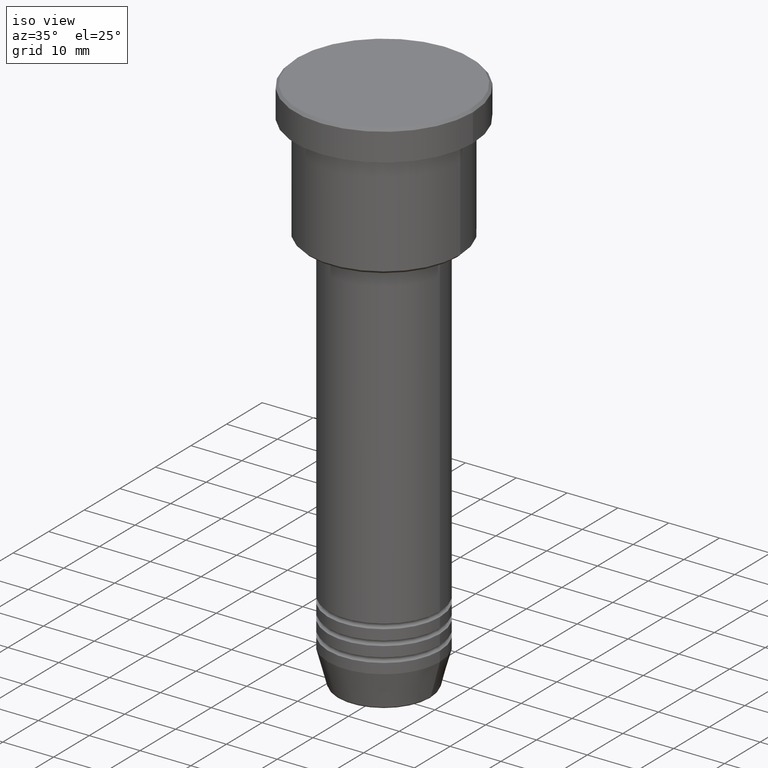
[diagram: clean part render]
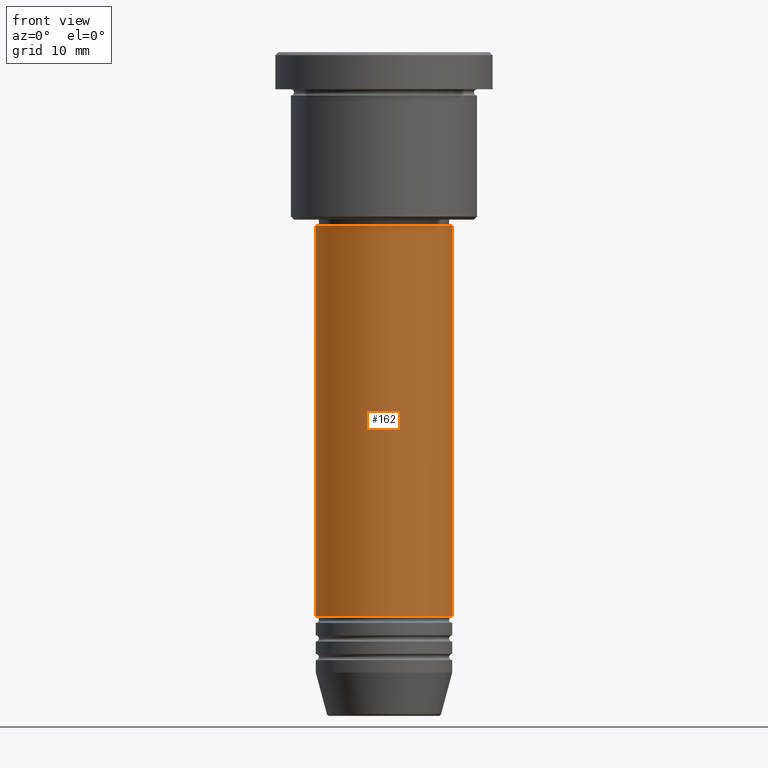
[diagram: tour spotlight — one face highlighted and labeled with its STEP entity id]
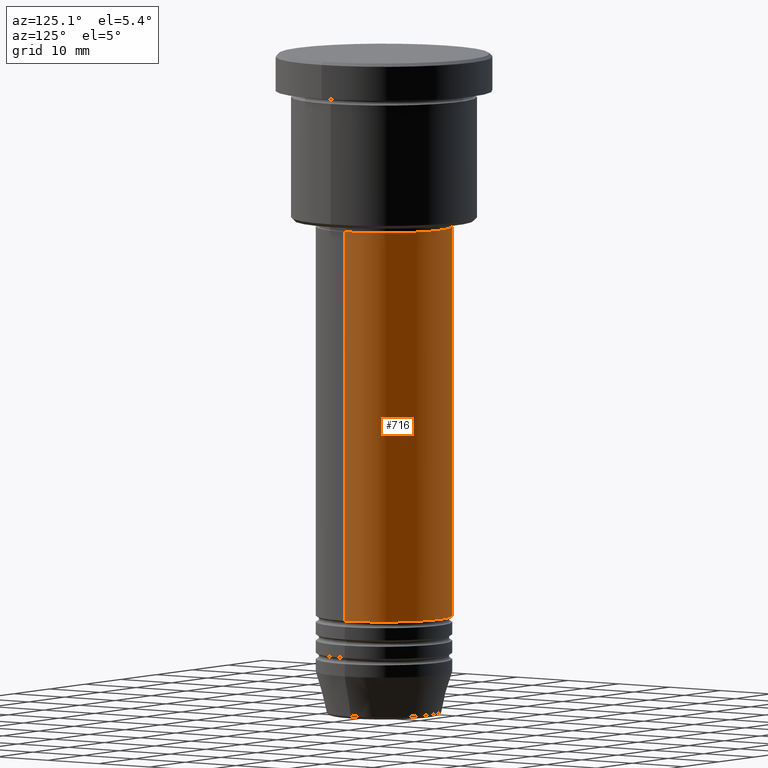
[diagram: tour spotlight — one face highlighted and labeled with its STEP entity id]
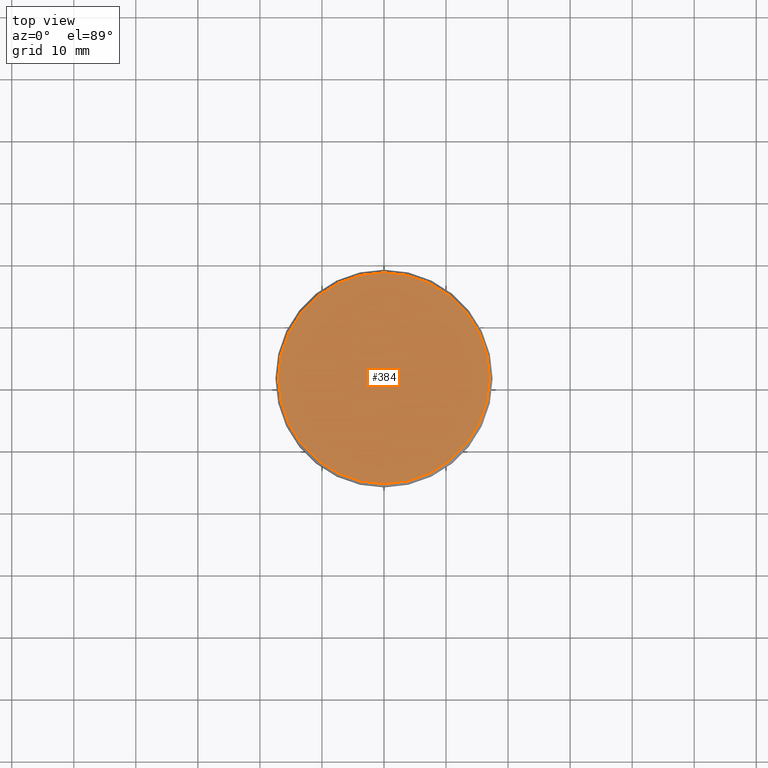
[diagram: tour spotlight — one face highlighted and labeled with its STEP entity id]
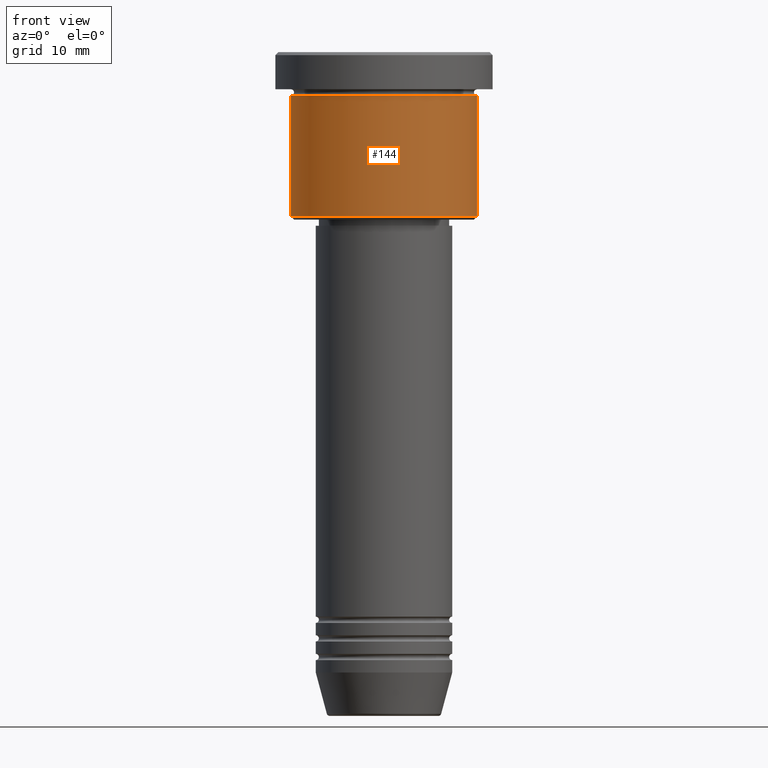
[diagram: tour spotlight — one face highlighted and labeled with its STEP entity id]
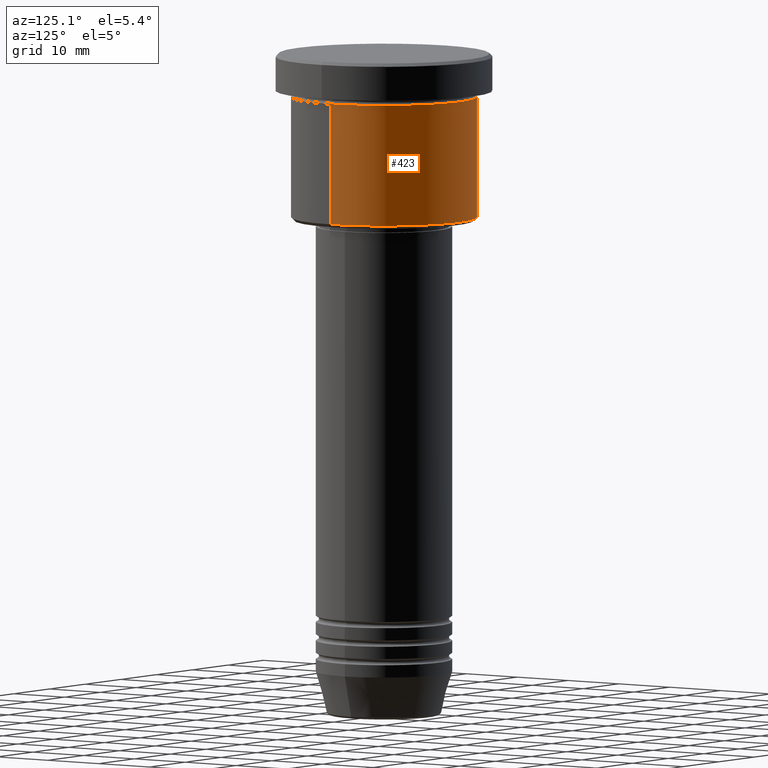
[diagram: tour spotlight — one face highlighted and labeled with its STEP entity id]
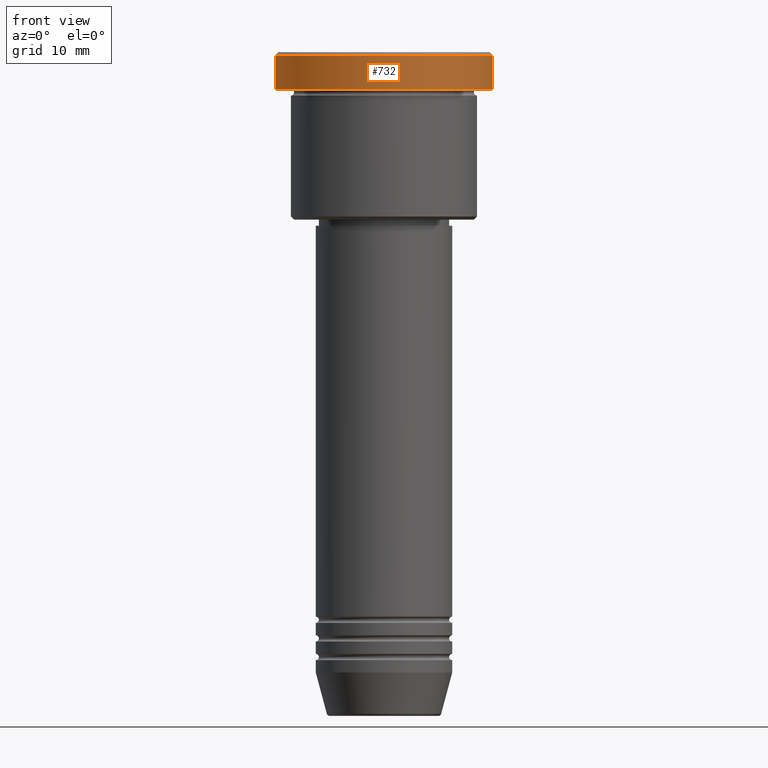
[diagram: tour spotlight — one face highlighted and labeled with its STEP entity id]
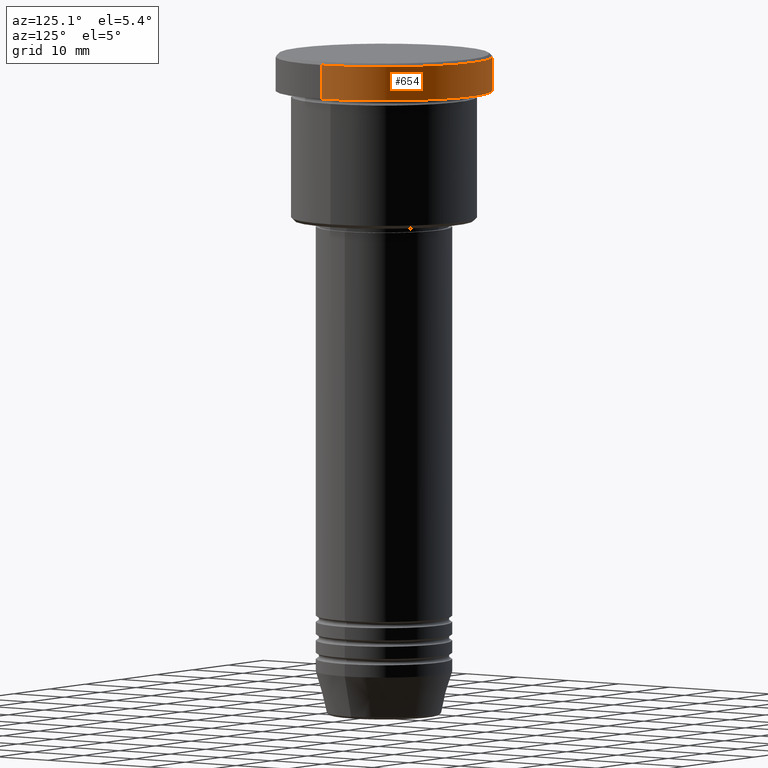
[diagram: tour spotlight — one face highlighted and labeled with its STEP entity id]
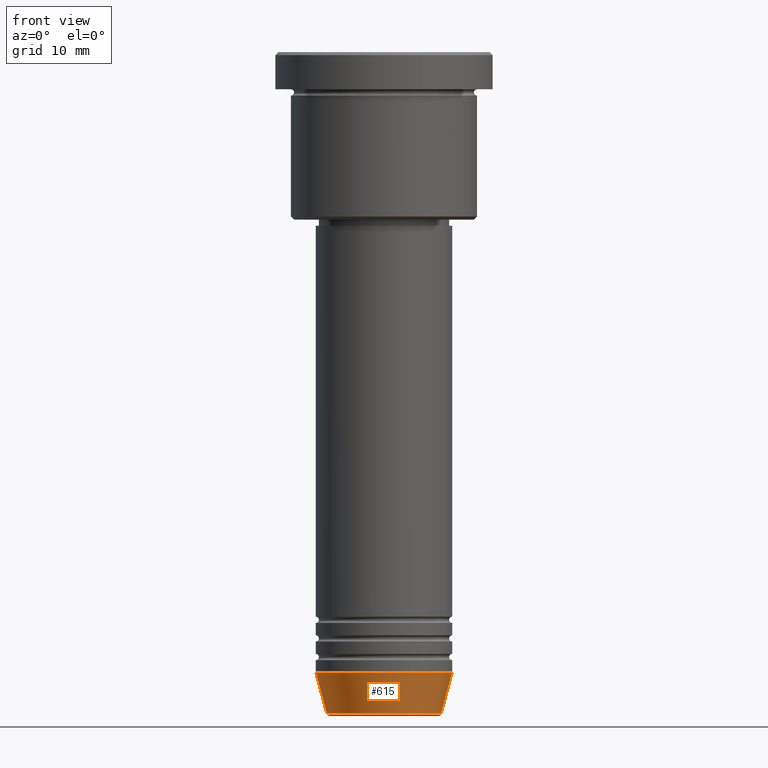
[diagram: tour spotlight — one face highlighted and labeled with its STEP entity id]
A machine part: a face-by-face anatomy tour. The part has 43 B-rep faces; the first image is the clean iso view, then the 8 largest visible faces are spotlighted one at a time (largest first), each with its STEP entity span.

Face 1 — front view, entity #162. In plain terms, the highlighted cylindrical surface (partial cylindrical patch) has radius 11 mm, axis along (-0, -0, 1).
Definition (entity closure, byte-faithful):
#48 = ORIENTED_EDGE ( 'NONE', *, *, #989, .T. ) ;
#113 = CIRCLE ( 'NONE', #520, 11.00000000000000000 ) ;
#124 = ORIENTED_EDGE ( 'NONE', *, *, #309, .F. ) ;
#133 = CARTESIAN_POINT ( 'NONE',  ( 0.000000000000000000, 0.000000000000000000, 0.000000000000000000 ) ) ;
#162 = ADVANCED_FACE ( 'NONE', ( #340 ), #1101, .T. ) ;
#258 = CARTESIAN_POINT ( 'NONE',  ( 11.00000000000000000, 0.000000000000000000, -90.99999999999997158 ) ) ;
#309 = EDGE_CURVE ( 'NONE', #803, #797, #557, .T. ) ;
#340 = FACE_OUTER_BOUND ( 'NONE', #943, .T. ) ;
#350 = CARTESIAN_POINT ( 'NONE',  ( 11.00000000000000000, 0.000000000000000000, 0.000000000000000000 ) ) ;
#382 = CARTESIAN_POINT ( 'NONE',  ( 0.000000000000000000, 0.000000000000000000, -28.00000000000000355 ) ) ;
#492 = DIRECTION ( 'NONE',  ( 1.000000000000000000, 0.000000000000000000, 0.000000000000000000 ) ) ;
#520 = AXIS2_PLACEMENT_3D ( 'NONE', #875, #584, #492 ) ;
#546 = CARTESIAN_POINT ( 'NONE',  ( -11.00000000000000000, 1.347111479062088405E-15, -28.00000000000000355 ) ) ;
#550 = AXIS2_PLACEMENT_3D ( 'NONE', #133, #780, #1154 ) ;
#557 = LINE ( 'NONE', #648, #825 ) ;
#570 = CARTESIAN_POINT ( 'NONE',  ( -11.00000000000000000, 1.347111479062088405E-15, -90.99999999999997158 ) ) ;
#584 = DIRECTION ( 'NONE',  ( -0.000000000000000000, -0.000000000000000000, 1.000000000000000000 ) ) ;
#587 = VERTEX_POINT ( 'NONE', #258 ) ;
#648 = CARTESIAN_POINT ( 'NONE',  ( -11.00000000000000000, 1.347111479062088405E-15, 0.000000000000000000 ) ) ;
#652 = EDGE_CURVE ( 'NONE', #587, #992, #1162, .T. ) ;
#708 = DIRECTION ( 'NONE',  ( -0.000000000000000000, -0.000000000000000000, 1.000000000000000000 ) ) ;
#712 = ORIENTED_EDGE ( 'NONE', *, *, #652, .T. ) ;
#776 = EDGE_CURVE ( 'NONE', #797, #992, #1004, .T. ) ;
#780 = DIRECTION ( 'NONE',  ( -0.000000000000000000, -0.000000000000000000, 1.000000000000000000 ) ) ;
#797 = VERTEX_POINT ( 'NONE', #546 ) ;
#803 = VERTEX_POINT ( 'NONE', #570 ) ;
#825 = VECTOR ( 'NONE', #915, 1000.000000000000000 ) ;
#875 = CARTESIAN_POINT ( 'NONE',  ( 0.000000000000000000, 0.000000000000000000, -90.99999999999997158 ) ) ;
#915 = DIRECTION ( 'NONE',  ( -0.000000000000000000, -0.000000000000000000, 1.000000000000000000 ) ) ;
#924 = VECTOR ( 'NONE', #708, 1000.000000000000000 ) ;
#938 = CARTESIAN_POINT ( 'NONE',  ( 11.00000000000000000, 0.000000000000000000, -28.00000000000000355 ) ) ;
#943 = EDGE_LOOP ( 'NONE', ( #124, #48, #712, #955 ) ) ;
#955 = ORIENTED_EDGE ( 'NONE', *, *, #776, .F. ) ;
#989 = EDGE_CURVE ( 'NONE', #803, #587, #113, .T. ) ;
#992 = VERTEX_POINT ( 'NONE', #938 ) ;
#1004 = CIRCLE ( 'NONE', #1168, 11.00000000000000000 ) ;
#1017 = DIRECTION ( 'NONE',  ( -0.000000000000000000, -0.000000000000000000, 1.000000000000000000 ) ) ;
#1101 = CYLINDRICAL_SURFACE ( 'NONE', #550, 11.00000000000000000 ) ;
#1112 = DIRECTION ( 'NONE',  ( 1.000000000000000000, 0.000000000000000000, 0.000000000000000000 ) ) ;
#1154 = DIRECTION ( 'NONE',  ( 1.000000000000000000, 0.000000000000000000, 0.000000000000000000 ) ) ;
#1162 = LINE ( 'NONE', #350, #924 ) ;
#1168 = AXIS2_PLACEMENT_3D ( 'NONE', #382, #1017, #1112 ) ;

Face 2 — auxiliary view, entity #716. In plain terms, the highlighted cylindrical surface (partial cylindrical patch) has radius 11 mm, axis along (-0, -0, 1).
Definition (entity closure, byte-faithful):
#34 = CARTESIAN_POINT ( 'NONE',  ( 0.000000000000000000, 0.000000000000000000, -90.99999999999997158 ) ) ;
#78 = CIRCLE ( 'NONE', #1102, 11.00000000000000000 ) ;
#85 = CARTESIAN_POINT ( 'NONE',  ( 0.000000000000000000, 0.000000000000000000, -28.00000000000000355 ) ) ;
#258 = CARTESIAN_POINT ( 'NONE',  ( 11.00000000000000000, 0.000000000000000000, -90.99999999999997158 ) ) ;
#262 = DIRECTION ( 'NONE',  ( -0.000000000000000000, -0.000000000000000000, 1.000000000000000000 ) ) ;
#299 = EDGE_LOOP ( 'NONE', ( #1105, #1075, #324, #684 ) ) ;
#309 = EDGE_CURVE ( 'NONE', #803, #797, #557, .T. ) ;
#324 = ORIENTED_EDGE ( 'NONE', *, *, #377, .F. ) ;
#331 = DIRECTION ( 'NONE',  ( 1.000000000000000000, 0.000000000000000000, 0.000000000000000000 ) ) ;
#350 = CARTESIAN_POINT ( 'NONE',  ( 11.00000000000000000, 0.000000000000000000, 0.000000000000000000 ) ) ;
#374 = DIRECTION ( 'NONE',  ( 1.000000000000000000, 0.000000000000000000, 0.000000000000000000 ) ) ;
#377 = EDGE_CURVE ( 'NONE', #992, #797, #534, .T. ) ;
#386 = DIRECTION ( 'NONE',  ( -0.000000000000000000, -0.000000000000000000, 1.000000000000000000 ) ) ;
#519 = AXIS2_PLACEMENT_3D ( 'NONE', #842, #386, #374 ) ;
#534 = CIRCLE ( 'NONE', #807, 11.00000000000000000 ) ;
#546 = CARTESIAN_POINT ( 'NONE',  ( -11.00000000000000000, 1.347111479062088405E-15, -28.00000000000000355 ) ) ;
#557 = LINE ( 'NONE', #648, #825 ) ;
#570 = CARTESIAN_POINT ( 'NONE',  ( -11.00000000000000000, 1.347111479062088405E-15, -90.99999999999997158 ) ) ;
#587 = VERTEX_POINT ( 'NONE', #258 ) ;
#648 = CARTESIAN_POINT ( 'NONE',  ( -11.00000000000000000, 1.347111479062088405E-15, 0.000000000000000000 ) ) ;
#652 = EDGE_CURVE ( 'NONE', #587, #992, #1162, .T. ) ;
#667 = CYLINDRICAL_SURFACE ( 'NONE', #519, 11.00000000000000000 ) ;
#684 = ORIENTED_EDGE ( 'NONE', *, *, #652, .F. ) ;
#708 = DIRECTION ( 'NONE',  ( -0.000000000000000000, -0.000000000000000000, 1.000000000000000000 ) ) ;
#716 = ADVANCED_FACE ( 'NONE', ( #991 ), #667, .T. ) ;
#782 = DIRECTION ( 'NONE',  ( -0.000000000000000000, -0.000000000000000000, 1.000000000000000000 ) ) ;
#797 = VERTEX_POINT ( 'NONE', #546 ) ;
#803 = VERTEX_POINT ( 'NONE', #570 ) ;
#807 = AXIS2_PLACEMENT_3D ( 'NONE', #85, #262, #819 ) ;
#819 = DIRECTION ( 'NONE',  ( 1.000000000000000000, 0.000000000000000000, 0.000000000000000000 ) ) ;
#825 = VECTOR ( 'NONE', #915, 1000.000000000000000 ) ;
#842 = CARTESIAN_POINT ( 'NONE',  ( 0.000000000000000000, 0.000000000000000000, 0.000000000000000000 ) ) ;
#853 = EDGE_CURVE ( 'NONE', #587, #803, #78, .T. ) ;
#915 = DIRECTION ( 'NONE',  ( -0.000000000000000000, -0.000000000000000000, 1.000000000000000000 ) ) ;
#924 = VECTOR ( 'NONE', #708, 1000.000000000000000 ) ;
#938 = CARTESIAN_POINT ( 'NONE',  ( 11.00000000000000000, 0.000000000000000000, -28.00000000000000355 ) ) ;
#991 = FACE_OUTER_BOUND ( 'NONE', #299, .T. ) ;
#992 = VERTEX_POINT ( 'NONE', #938 ) ;
#1075 = ORIENTED_EDGE ( 'NONE', *, *, #309, .T. ) ;
#1102 = AXIS2_PLACEMENT_3D ( 'NONE', #34, #782, #331 ) ;
#1105 = ORIENTED_EDGE ( 'NONE', *, *, #853, .T. ) ;
#1162 = LINE ( 'NONE', #350, #924 ) ;

Face 3 — top view, entity #384. In plain terms, the highlighted planar face has unit normal (0, -0, 1).
Definition (entity closure, byte-faithful):
#135 = EDGE_CURVE ( 'NONE', #661, #1094, #634, .T. ) ;
#177 = DIRECTION ( 'NONE',  ( 1.000000000000000000, 0.000000000000000000, 0.000000000000000000 ) ) ;
#298 = DIRECTION ( 'NONE',  ( 0.000000000000000000, -0.000000000000000000, 1.000000000000000000 ) ) ;
#301 = EDGE_LOOP ( 'NONE', ( #697, #925 ) ) ;
#303 = AXIS2_PLACEMENT_3D ( 'NONE', #576, #298, #387 ) ;
#351 = CARTESIAN_POINT ( 'NONE',  ( 0.000000000000000000, 0.000000000000000000, 0.000000000000000000 ) ) ;
#384 = ADVANCED_FACE ( 'NONE', ( #481 ), #945, .T. ) ;
#387 = DIRECTION ( 'NONE',  ( 1.000000000000000000, 0.000000000000000000, 0.000000000000000000 ) ) ;
#437 = CARTESIAN_POINT ( 'NONE',  ( 0.000000000000000000, 0.000000000000000000, 0.000000000000000000 ) ) ;
#481 = FACE_OUTER_BOUND ( 'NONE', #301, .T. ) ;
#523 = DIRECTION ( 'NONE',  ( -0.000000000000000000, -0.000000000000000000, 1.000000000000000000 ) ) ;
#540 = DIRECTION ( 'NONE',  ( 1.000000000000000000, 0.000000000000000000, 0.000000000000000000 ) ) ;
#553 = CIRCLE ( 'NONE', #636, 17.00000000000000000 ) ;
#576 = CARTESIAN_POINT ( 'NONE',  ( 0.000000000000000000, 0.000000000000000000, 0.000000000000000000 ) ) ;
#630 = EDGE_CURVE ( 'NONE', #1094, #661, #553, .T. ) ;
#634 = CIRCLE ( 'NONE', #923, 17.00000000000000000 ) ;
#636 = AXIS2_PLACEMENT_3D ( 'NONE', #437, #523, #540 ) ;
#640 = CARTESIAN_POINT ( 'NONE',  ( -17.00000000000000000, 0.000000000000000000, 0.000000000000000000 ) ) ;
#661 = VERTEX_POINT ( 'NONE', #640 ) ;
#697 = ORIENTED_EDGE ( 'NONE', *, *, #135, .T. ) ;
#923 = AXIS2_PLACEMENT_3D ( 'NONE', #351, #1076, #177 ) ;
#925 = ORIENTED_EDGE ( 'NONE', *, *, #630, .T. ) ;
#945 = PLANE ( 'NONE',  #303 ) ;
#1056 = CARTESIAN_POINT ( 'NONE',  ( 17.00000000000000000, 2.112515728529184067E-15, 0.000000000000000000 ) ) ;
#1076 = DIRECTION ( 'NONE',  ( -0.000000000000000000, -0.000000000000000000, 1.000000000000000000 ) ) ;
#1094 = VERTEX_POINT ( 'NONE', #1056 ) ;

Face 4 — front view, entity #144. In plain terms, the highlighted cylindrical surface (partial cylindrical patch) has radius 15 mm, axis along (-0, -0, 1).
Definition (entity closure, byte-faithful):
#46 = CARTESIAN_POINT ( 'NONE',  ( 15.00000000000000000, 0.000000000000000000, -26.49999999999997158 ) ) ;
#53 = CARTESIAN_POINT ( 'NONE',  ( 0.000000000000000000, 0.000000000000000000, -26.49999999999997158 ) ) ;
#56 = CIRCLE ( 'NONE', #536, 15.00000000000000000 ) ;
#72 = DIRECTION ( 'NONE',  ( -0.000000000000000000, -0.000000000000000000, 1.000000000000000000 ) ) ;
#88 = CYLINDRICAL_SURFACE ( 'NONE', #92, 15.00000000000000000 ) ;
#92 = AXIS2_PLACEMENT_3D ( 'NONE', #452, #731, #524 ) ;
#125 = CARTESIAN_POINT ( 'NONE',  ( 15.00000000000000000, 0.000000000000000000, -6.999999999999995559 ) ) ;
#138 = CARTESIAN_POINT ( 'NONE',  ( 0.000000000000000000, 0.000000000000000000, -6.999999999999995559 ) ) ;
#144 = ADVANCED_FACE ( 'NONE', ( #905 ), #88, .T. ) ;
#148 = VERTEX_POINT ( 'NONE', #1163 ) ;
#176 = VERTEX_POINT ( 'NONE', #681 ) ;
#179 = ORIENTED_EDGE ( 'NONE', *, *, #921, .F. ) ;
#202 = EDGE_CURVE ( 'NONE', #148, #176, #1040, .T. ) ;
#212 = VECTOR ( 'NONE', #864, 1000.000000000000000 ) ;
#223 = VERTEX_POINT ( 'NONE', #46 ) ;
#228 = EDGE_CURVE ( 'NONE', #148, #223, #56, .T. ) ;
#307 = AXIS2_PLACEMENT_3D ( 'NONE', #138, #610, #395 ) ;
#330 = ORIENTED_EDGE ( 'NONE', *, *, #228, .T. ) ;
#395 = DIRECTION ( 'NONE',  ( 1.000000000000000000, 0.000000000000000000, 0.000000000000000000 ) ) ;
#422 = DIRECTION ( 'NONE',  ( -0.000000000000000000, -0.000000000000000000, 1.000000000000000000 ) ) ;
#452 = CARTESIAN_POINT ( 'NONE',  ( 0.000000000000000000, 0.000000000000000000, 0.000000000000000000 ) ) ;
#456 = ORIENTED_EDGE ( 'NONE', *, *, #670, .T. ) ;
#498 = VECTOR ( 'NONE', #72, 1000.000000000000000 ) ;
#524 = DIRECTION ( 'NONE',  ( 1.000000000000000000, 0.000000000000000000, 0.000000000000000000 ) ) ;
#536 = AXIS2_PLACEMENT_3D ( 'NONE', #53, #422, #792 ) ;
#598 = CARTESIAN_POINT ( 'NONE',  ( -15.00000000000000000, 1.836970198721029589E-15, 0.000000000000000000 ) ) ;
#610 = DIRECTION ( 'NONE',  ( -0.000000000000000000, -0.000000000000000000, 1.000000000000000000 ) ) ;
#611 = ORIENTED_EDGE ( 'NONE', *, *, #202, .F. ) ;
#670 = EDGE_CURVE ( 'NONE', #223, #835, #974, .T. ) ;
#681 = CARTESIAN_POINT ( 'NONE',  ( -15.00000000000000000, 1.836970198721029589E-15, -6.999999999999995559 ) ) ;
#715 = CARTESIAN_POINT ( 'NONE',  ( 15.00000000000000000, 0.000000000000000000, 0.000000000000000000 ) ) ;
#731 = DIRECTION ( 'NONE',  ( -0.000000000000000000, -0.000000000000000000, 1.000000000000000000 ) ) ;
#792 = DIRECTION ( 'NONE',  ( -1.000000000000000000, 0.000000000000000000, 0.000000000000000000 ) ) ;
#835 = VERTEX_POINT ( 'NONE', #125 ) ;
#864 = DIRECTION ( 'NONE',  ( -0.000000000000000000, -0.000000000000000000, 1.000000000000000000 ) ) ;
#899 = CIRCLE ( 'NONE', #307, 15.00000000000000000 ) ;
#905 = FACE_OUTER_BOUND ( 'NONE', #983, .T. ) ;
#921 = EDGE_CURVE ( 'NONE', #176, #835, #899, .T. ) ;
#974 = LINE ( 'NONE', #715, #498 ) ;
#983 = EDGE_LOOP ( 'NONE', ( #611, #330, #456, #179 ) ) ;
#1040 = LINE ( 'NONE', #598, #212 ) ;
#1163 = CARTESIAN_POINT ( 'NONE',  ( -15.00000000000000000, 1.836970198721029589E-15, -26.49999999999997158 ) ) ;

Face 5 — auxiliary view, entity #423. In plain terms, the highlighted cylindrical surface (partial cylindrical patch) has radius 15 mm, axis along (-0, -0, 1).
Definition (entity closure, byte-faithful):
#46 = CARTESIAN_POINT ( 'NONE',  ( 15.00000000000000000, 0.000000000000000000, -26.49999999999997158 ) ) ;
#62 = CIRCLE ( 'NONE', #581, 15.00000000000000000 ) ;
#71 = DIRECTION ( 'NONE',  ( -0.000000000000000000, -0.000000000000000000, 1.000000000000000000 ) ) ;
#72 = DIRECTION ( 'NONE',  ( -0.000000000000000000, -0.000000000000000000, 1.000000000000000000 ) ) ;
#76 = AXIS2_PLACEMENT_3D ( 'NONE', #438, #1039, #700 ) ;
#109 = AXIS2_PLACEMENT_3D ( 'NONE', #511, #247, #612 ) ;
#125 = CARTESIAN_POINT ( 'NONE',  ( 15.00000000000000000, 0.000000000000000000, -6.999999999999995559 ) ) ;
#148 = VERTEX_POINT ( 'NONE', #1163 ) ;
#176 = VERTEX_POINT ( 'NONE', #681 ) ;
#202 = EDGE_CURVE ( 'NONE', #148, #176, #1040, .T. ) ;
#212 = VECTOR ( 'NONE', #864, 1000.000000000000000 ) ;
#223 = VERTEX_POINT ( 'NONE', #46 ) ;
#247 = DIRECTION ( 'NONE',  ( -0.000000000000000000, -0.000000000000000000, 1.000000000000000000 ) ) ;
#287 = CYLINDRICAL_SURFACE ( 'NONE', #76, 15.00000000000000000 ) ;
#322 = ORIENTED_EDGE ( 'NONE', *, *, #202, .T. ) ;
#372 = FACE_OUTER_BOUND ( 'NONE', #1114, .T. ) ;
#423 = ADVANCED_FACE ( 'NONE', ( #372 ), #287, .T. ) ;
#438 = CARTESIAN_POINT ( 'NONE',  ( 0.000000000000000000, 0.000000000000000000, 0.000000000000000000 ) ) ;
#440 = DIRECTION ( 'NONE',  ( 1.000000000000000000, 0.000000000000000000, 0.000000000000000000 ) ) ;
#462 = ORIENTED_EDGE ( 'NONE', *, *, #1108, .F. ) ;
#482 = EDGE_CURVE ( 'NONE', #223, #148, #635, .T. ) ;
#498 = VECTOR ( 'NONE', #72, 1000.000000000000000 ) ;
#511 = CARTESIAN_POINT ( 'NONE',  ( 0.000000000000000000, 0.000000000000000000, -26.49999999999997158 ) ) ;
#531 = CARTESIAN_POINT ( 'NONE',  ( 0.000000000000000000, 0.000000000000000000, -6.999999999999995559 ) ) ;
#564 = ORIENTED_EDGE ( 'NONE', *, *, #670, .F. ) ;
#581 = AXIS2_PLACEMENT_3D ( 'NONE', #531, #71, #440 ) ;
#598 = CARTESIAN_POINT ( 'NONE',  ( -15.00000000000000000, 1.836970198721029589E-15, 0.000000000000000000 ) ) ;
#612 = DIRECTION ( 'NONE',  ( -1.000000000000000000, 0.000000000000000000, 0.000000000000000000 ) ) ;
#635 = CIRCLE ( 'NONE', #109, 15.00000000000000000 ) ;
#670 = EDGE_CURVE ( 'NONE', #223, #835, #974, .T. ) ;
#681 = CARTESIAN_POINT ( 'NONE',  ( -15.00000000000000000, 1.836970198721029589E-15, -6.999999999999995559 ) ) ;
#700 = DIRECTION ( 'NONE',  ( 1.000000000000000000, 0.000000000000000000, 0.000000000000000000 ) ) ;
#715 = CARTESIAN_POINT ( 'NONE',  ( 15.00000000000000000, 0.000000000000000000, 0.000000000000000000 ) ) ;
#835 = VERTEX_POINT ( 'NONE', #125 ) ;
#864 = DIRECTION ( 'NONE',  ( -0.000000000000000000, -0.000000000000000000, 1.000000000000000000 ) ) ;
#876 = ORIENTED_EDGE ( 'NONE', *, *, #482, .T. ) ;
#974 = LINE ( 'NONE', #715, #498 ) ;
#1039 = DIRECTION ( 'NONE',  ( -0.000000000000000000, -0.000000000000000000, 1.000000000000000000 ) ) ;
#1040 = LINE ( 'NONE', #598, #212 ) ;
#1108 = EDGE_CURVE ( 'NONE', #835, #176, #62, .T. ) ;
#1114 = EDGE_LOOP ( 'NONE', ( #876, #322, #462, #564 ) ) ;
#1163 = CARTESIAN_POINT ( 'NONE',  ( -15.00000000000000000, 1.836970198721029589E-15, -26.49999999999997158 ) ) ;

Face 6 — front view, entity #732. In plain terms, the highlighted cylindrical surface (partial cylindrical patch) has radius 17.5 mm, axis along (-0, -0, 1).
Definition (entity closure, byte-faithful):
#5 = DIRECTION ( 'NONE',  ( 1.000000000000000000, 0.000000000000000000, 0.000000000000000000 ) ) ;
#6 = CARTESIAN_POINT ( 'NONE',  ( 0.000000000000000000, 0.000000000000000000, 0.000000000000000000 ) ) ;
#70 = EDGE_CURVE ( 'NONE', #412, #929, #464, .T. ) ;
#128 = CARTESIAN_POINT ( 'NONE',  ( 17.50000000000000000, 0.000000000000000000, -0.5000000000000142109 ) ) ;
#207 = CARTESIAN_POINT ( 'NONE',  ( -17.50000000000000000, 2.143131898507868248E-15, 0.000000000000000000 ) ) ;
#231 = DIRECTION ( 'NONE',  ( 1.000000000000000000, 0.000000000000000000, 0.000000000000000000 ) ) ;
#253 = CIRCLE ( 'NONE', #673, 17.50000000000000000 ) ;
#255 = AXIS2_PLACEMENT_3D ( 'NONE', #689, #428, #231 ) ;
#277 = DIRECTION ( 'NONE',  ( -0.000000000000000000, -0.000000000000000000, 1.000000000000000000 ) ) ;
#335 = EDGE_CURVE ( 'NONE', #539, #555, #836, .T. ) ;
#371 = DIRECTION ( 'NONE',  ( -0.000000000000000000, -0.000000000000000000, 1.000000000000000000 ) ) ;
#412 = VERTEX_POINT ( 'NONE', #1142 ) ;
#428 = DIRECTION ( 'NONE',  ( -0.000000000000000000, -0.000000000000000000, 1.000000000000000000 ) ) ;
#464 = LINE ( 'NONE', #207, #1122 ) ;
#490 = ORIENTED_EDGE ( 'NONE', *, *, #335, .T. ) ;
#539 = VERTEX_POINT ( 'NONE', #588 ) ;
#555 = VERTEX_POINT ( 'NONE', #128 ) ;
#573 = EDGE_CURVE ( 'NONE', #555, #929, #253, .T. ) ;
#578 = VECTOR ( 'NONE', #371, 1000.000000000000000 ) ;
#585 = ORIENTED_EDGE ( 'NONE', *, *, #919, .T. ) ;
#588 = CARTESIAN_POINT ( 'NONE',  ( 17.50000000000000000, 0.000000000000000000, -5.999999999999995559 ) ) ;
#645 = DIRECTION ( 'NONE',  ( 1.000000000000000000, 0.000000000000000000, 0.000000000000000000 ) ) ;
#673 = AXIS2_PLACEMENT_3D ( 'NONE', #728, #985, #645 ) ;
#689 = CARTESIAN_POINT ( 'NONE',  ( 0.000000000000000000, 0.000000000000000000, -5.999999999999995559 ) ) ;
#696 = CIRCLE ( 'NONE', #255, 17.50000000000000000 ) ;
#698 = CARTESIAN_POINT ( 'NONE',  ( -17.50000000000000000, 2.143131898507868248E-15, -0.5000000000000142109 ) ) ;
#728 = CARTESIAN_POINT ( 'NONE',  ( 0.000000000000000000, 0.000000000000000000, -0.5000000000000142109 ) ) ;
#732 = ADVANCED_FACE ( 'NONE', ( #912 ), #1095, .T. ) ;
#793 = AXIS2_PLACEMENT_3D ( 'NONE', #6, #277, #5 ) ;
#836 = LINE ( 'NONE', #1107, #578 ) ;
#868 = ORIENTED_EDGE ( 'NONE', *, *, #70, .F. ) ;
#912 = FACE_OUTER_BOUND ( 'NONE', #933, .T. ) ;
#913 = DIRECTION ( 'NONE',  ( -0.000000000000000000, -0.000000000000000000, 1.000000000000000000 ) ) ;
#919 = EDGE_CURVE ( 'NONE', #412, #539, #696, .T. ) ;
#929 = VERTEX_POINT ( 'NONE', #698 ) ;
#933 = EDGE_LOOP ( 'NONE', ( #868, #585, #490, #963 ) ) ;
#963 = ORIENTED_EDGE ( 'NONE', *, *, #573, .T. ) ;
#985 = DIRECTION ( 'NONE',  ( 0.000000000000000000, 0.000000000000000000, -1.000000000000000000 ) ) ;
#1095 = CYLINDRICAL_SURFACE ( 'NONE', #793, 17.50000000000000000 ) ;
#1107 = CARTESIAN_POINT ( 'NONE',  ( 17.50000000000000000, 0.000000000000000000, 0.000000000000000000 ) ) ;
#1122 = VECTOR ( 'NONE', #913, 1000.000000000000000 ) ;
#1142 = CARTESIAN_POINT ( 'NONE',  ( -17.50000000000000000, 2.143131898507868248E-15, -5.999999999999995559 ) ) ;

Face 7 — auxiliary view, entity #654. In plain terms, the highlighted cylindrical surface (partial cylindrical patch) has radius 17.5 mm, axis along (-0, -0, 1).
Definition (entity closure, byte-faithful):
#70 = EDGE_CURVE ( 'NONE', #412, #929, #464, .T. ) ;
#128 = CARTESIAN_POINT ( 'NONE',  ( 17.50000000000000000, 0.000000000000000000, -0.5000000000000142109 ) ) ;
#160 = ORIENTED_EDGE ( 'NONE', *, *, #786, .T. ) ;
#206 = DIRECTION ( 'NONE',  ( -0.000000000000000000, -0.000000000000000000, 1.000000000000000000 ) ) ;
#207 = CARTESIAN_POINT ( 'NONE',  ( -17.50000000000000000, 2.143131898507868248E-15, 0.000000000000000000 ) ) ;
#268 = CARTESIAN_POINT ( 'NONE',  ( 0.000000000000000000, 0.000000000000000000, 0.000000000000000000 ) ) ;
#335 = EDGE_CURVE ( 'NONE', #539, #555, #836, .T. ) ;
#371 = DIRECTION ( 'NONE',  ( -0.000000000000000000, -0.000000000000000000, 1.000000000000000000 ) ) ;
#408 = EDGE_LOOP ( 'NONE', ( #160, #957, #1033, #568 ) ) ;
#412 = VERTEX_POINT ( 'NONE', #1142 ) ;
#457 = DIRECTION ( 'NONE',  ( 0.000000000000000000, 0.000000000000000000, -1.000000000000000000 ) ) ;
#464 = LINE ( 'NONE', #207, #1122 ) ;
#539 = VERTEX_POINT ( 'NONE', #588 ) ;
#544 = DIRECTION ( 'NONE',  ( 1.000000000000000000, 0.000000000000000000, 0.000000000000000000 ) ) ;
#555 = VERTEX_POINT ( 'NONE', #128 ) ;
#568 = ORIENTED_EDGE ( 'NONE', *, *, #335, .F. ) ;
#578 = VECTOR ( 'NONE', #371, 1000.000000000000000 ) ;
#588 = CARTESIAN_POINT ( 'NONE',  ( 17.50000000000000000, 0.000000000000000000, -5.999999999999995559 ) ) ;
#622 = DIRECTION ( 'NONE',  ( -0.000000000000000000, -0.000000000000000000, 1.000000000000000000 ) ) ;
#654 = ADVANCED_FACE ( 'NONE', ( #1063 ), #1171, .T. ) ;
#657 = CARTESIAN_POINT ( 'NONE',  ( 0.000000000000000000, 0.000000000000000000, -0.5000000000000142109 ) ) ;
#659 = CIRCLE ( 'NONE', #808, 17.50000000000000000 ) ;
#698 = CARTESIAN_POINT ( 'NONE',  ( -17.50000000000000000, 2.143131898507868248E-15, -0.5000000000000142109 ) ) ;
#725 = CIRCLE ( 'NONE', #1180, 17.50000000000000000 ) ;
#733 = EDGE_CURVE ( 'NONE', #929, #555, #725, .T. ) ;
#743 = DIRECTION ( 'NONE',  ( 1.000000000000000000, 0.000000000000000000, 0.000000000000000000 ) ) ;
#757 = CARTESIAN_POINT ( 'NONE',  ( 0.000000000000000000, 0.000000000000000000, -5.999999999999995559 ) ) ;
#786 = EDGE_CURVE ( 'NONE', #539, #412, #659, .T. ) ;
#808 = AXIS2_PLACEMENT_3D ( 'NONE', #757, #206, #834 ) ;
#834 = DIRECTION ( 'NONE',  ( 1.000000000000000000, 0.000000000000000000, 0.000000000000000000 ) ) ;
#836 = LINE ( 'NONE', #1107, #578 ) ;
#913 = DIRECTION ( 'NONE',  ( -0.000000000000000000, -0.000000000000000000, 1.000000000000000000 ) ) ;
#929 = VERTEX_POINT ( 'NONE', #698 ) ;
#957 = ORIENTED_EDGE ( 'NONE', *, *, #70, .T. ) ;
#1033 = ORIENTED_EDGE ( 'NONE', *, *, #733, .T. ) ;
#1063 = FACE_OUTER_BOUND ( 'NONE', #408, .T. ) ;
#1107 = CARTESIAN_POINT ( 'NONE',  ( 17.50000000000000000, 0.000000000000000000, 0.000000000000000000 ) ) ;
#1122 = VECTOR ( 'NONE', #913, 1000.000000000000000 ) ;
#1125 = AXIS2_PLACEMENT_3D ( 'NONE', #268, #622, #544 ) ;
#1142 = CARTESIAN_POINT ( 'NONE',  ( -17.50000000000000000, 2.143131898507868248E-15, -5.999999999999995559 ) ) ;
#1171 = CYLINDRICAL_SURFACE ( 'NONE', #1125, 17.50000000000000000 ) ;
#1180 = AXIS2_PLACEMENT_3D ( 'NONE', #657, #457, #743 ) ;

Face 8 — front view, entity #615. In plain terms, the highlighted conical surface has half-angle 15 deg.
Definition (entity closure, byte-faithful):
#4 = VERTEX_POINT ( 'NONE', #1087 ) ;
#59 = EDGE_CURVE ( 'NONE', #571, #4, #597, .T. ) ;
#66 = DIRECTION ( 'NONE',  ( -0.2588190451025213501, 3.169619151431772337E-17, 0.9659258262890680902 ) ) ;
#83 = CARTESIAN_POINT ( 'NONE',  ( 0.000000000000000000, 0.000000000000000000, -100.0000000000000000 ) ) ;
#93 = CIRCLE ( 'NONE', #166, 9.223655072137191269 ) ;
#147 = DIRECTION ( 'NONE',  ( -0.000000000000000000, -0.000000000000000000, 1.000000000000000000 ) ) ;
#166 = AXIS2_PLACEMENT_3D ( 'NONE', #1030, #147, #872 ) ;
#174 = VERTEX_POINT ( 'NONE', #222 ) ;
#222 = CARTESIAN_POINT ( 'NONE',  ( -9.223655072137191269, 1.238341722557647202E-15, -106.6294095225512422 ) ) ;
#259 = EDGE_CURVE ( 'NONE', #174, #772, #93, .T. ) ;
#269 = DIRECTION ( 'NONE',  ( 1.000000000000000000, 0.000000000000000000, 0.000000000000000000 ) ) ;
#388 = ORIENTED_EDGE ( 'NONE', *, *, #59, .F. ) ;
#421 = LINE ( 'NONE', #1158, #767 ) ;
#444 = VECTOR ( 'NONE', #66, 1000.000000000000000 ) ;
#469 = CARTESIAN_POINT ( 'NONE',  ( 9.223655072137191269, 0.000000000000000000, -106.6294095225512422 ) ) ;
#522 = ORIENTED_EDGE ( 'NONE', *, *, #259, .T. ) ;
#532 = CARTESIAN_POINT ( 'NONE',  ( 0.000000000000000000, 0.000000000000000000, -100.0000000000000000 ) ) ;
#535 = EDGE_CURVE ( 'NONE', #772, #4, #421, .T. ) ;
#543 = LINE ( 'NONE', #973, #444 ) ;
#571 = VERTEX_POINT ( 'NONE', #1086 ) ;
#597 = CIRCLE ( 'NONE', #1098, 11.00000000000000000 ) ;
#615 = ADVANCED_FACE ( 'NONE', ( #994 ), #694, .T. ) ;
#616 = DIRECTION ( 'NONE',  ( 0.2588190451025213501, 0.000000000000000000, 0.9659258262890680902 ) ) ;
#668 = EDGE_LOOP ( 'NONE', ( #1057, #522, #881, #388 ) ) ;
#694 = CONICAL_SURFACE ( 'NONE', #910, 11.00000000000000000, 0.2617993877991500740 ) ;
#721 = DIRECTION ( 'NONE',  ( 1.000000000000000000, 0.000000000000000000, 0.000000000000000000 ) ) ;
#767 = VECTOR ( 'NONE', #616, 1000.000000000000000 ) ;
#772 = VERTEX_POINT ( 'NONE', #469 ) ;
#815 = DIRECTION ( 'NONE',  ( -0.000000000000000000, -0.000000000000000000, 1.000000000000000000 ) ) ;
#872 = DIRECTION ( 'NONE',  ( 1.000000000000000000, 0.000000000000000000, 0.000000000000000000 ) ) ;
#881 = ORIENTED_EDGE ( 'NONE', *, *, #535, .T. ) ;
#888 = DIRECTION ( 'NONE',  ( -0.000000000000000000, -0.000000000000000000, 1.000000000000000000 ) ) ;
#910 = AXIS2_PLACEMENT_3D ( 'NONE', #532, #888, #721 ) ;
#973 = CARTESIAN_POINT ( 'NONE',  ( -11.00000000000000000, 1.347111479062088405E-15, -100.0000000000000000 ) ) ;
#994 = FACE_OUTER_BOUND ( 'NONE', #668, .T. ) ;
#1012 = EDGE_CURVE ( 'NONE', #174, #571, #543, .T. ) ;
#1030 = CARTESIAN_POINT ( 'NONE',  ( 0.000000000000000000, 0.000000000000000000, -106.6294095225512422 ) ) ;
#1057 = ORIENTED_EDGE ( 'NONE', *, *, #1012, .F. ) ;
#1086 = CARTESIAN_POINT ( 'NONE',  ( -11.00000000000000000, 1.347111479062088405E-15, -100.0000000000000000 ) ) ;
#1087 = CARTESIAN_POINT ( 'NONE',  ( 11.00000000000000000, 0.000000000000000000, -100.0000000000000000 ) ) ;
#1098 = AXIS2_PLACEMENT_3D ( 'NONE', #83, #815, #269 ) ;
#1158 = CARTESIAN_POINT ( 'NONE',  ( 11.00000000000000000, 0.000000000000000000, -100.0000000000000000 ) ) ;